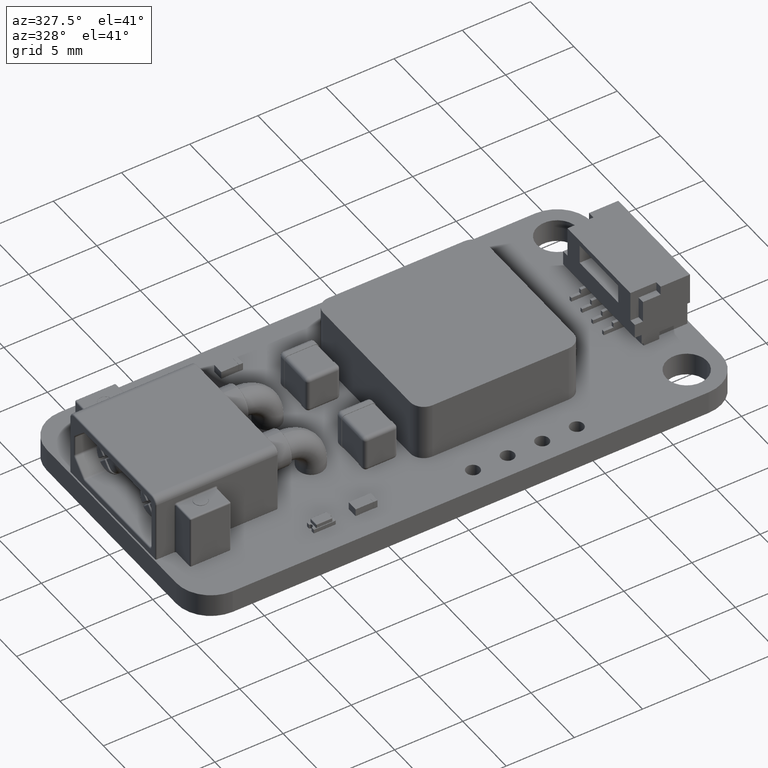
[diagram: clean part render]
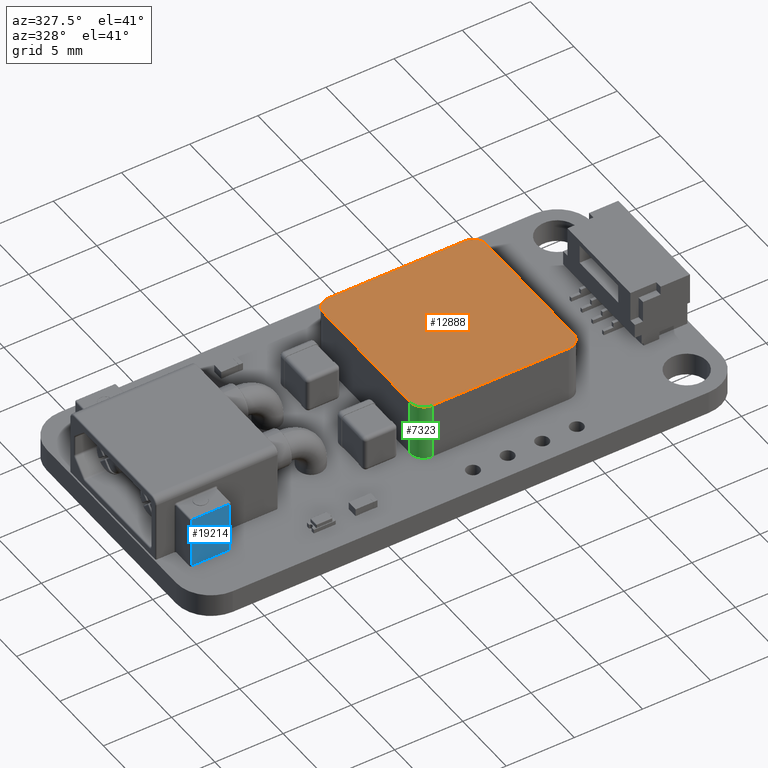
[diagram: same view with three faces highlighted in distinct colors, each labeled with its STEP entity id]
A machine part, auxiliary view with three faces highlighted in distinct colors.
Their STEP definitions:

[orange] entity #12888 — the highlighted planar face has unit normal (-0, 0, 1).
#1650 = EDGE_CURVE ( 'NONE', #7289, #15286, #23761, .T. ) ;
#3322 = CIRCLE ( 'NONE', #15708, 1.000000000000000888 ) ;
#3909 = DIRECTION ( 'NONE',  ( -0.000000000000000000, 0.000000000000000000, 1.000000000000000000 ) ) ;
#4015 = CARTESIAN_POINT ( 'NONE',  ( 55.17521793726596968, 30.47664569903596998, 4.200000000000000178 ) ) ;
#4392 = AXIS2_PLACEMENT_3D ( 'NONE', #9703, #3909, #15662 ) ;
#5145 = CARTESIAN_POINT ( 'NONE',  ( 56.17521793726596258, 41.47664569903596998, 4.200000000000000178 ) ) ;
#5521 = EDGE_CURVE ( 'NONE', #25078, #11271, #29219, .T. ) ;
#5750 = DIRECTION ( 'NONE',  ( -0.000000000000000000, 0.000000000000000000, 1.000000000000000000 ) ) ;
#5923 = CARTESIAN_POINT ( 'NONE',  ( 55.17521793726596258, 40.47664569903596998, 4.200000000000000178 ) ) ;
#6546 = DIRECTION ( 'NONE',  ( -0.000000000000000000, 0.000000000000000000, 1.000000000000000000 ) ) ;
#7289 = VERTEX_POINT ( 'NONE', #14321 ) ;
#7637 = CARTESIAN_POINT ( 'NONE',  ( 44.17521793726596968, 30.47664569903596998, 4.200000000000000178 ) ) ;
#8120 = ORIENTED_EDGE ( 'NONE', *, *, #30460, .T. ) ;
#8282 = CIRCLE ( 'NONE', #16291, 1.000000000000000888 ) ;
#8380 = CARTESIAN_POINT ( 'NONE',  ( 44.17521793726596968, 29.47664569903596998, 4.200000000000000178 ) ) ;
#8585 = AXIS2_PLACEMENT_3D ( 'NONE', #21249, #6546, #12139 ) ;
#9703 = CARTESIAN_POINT ( 'NONE',  ( 45.17521793726596968, 30.47664569903596643, 4.200000000000000178 ) ) ;
#9732 = CARTESIAN_POINT ( 'NONE',  ( 45.17521793726596258, 41.47664569903596998, 4.200000000000000178 ) ) ;
#10430 = CARTESIAN_POINT ( 'NONE',  ( 45.17521793726596968, 29.47664569903596998, 4.200000000000000178 ) ) ;
#10550 = EDGE_LOOP ( 'NONE', ( #25750, #15435, #31411, #19961, #13723, #8120, #11617, #27683 ) ) ;
#11271 = VERTEX_POINT ( 'NONE', #23059 ) ;
#11617 = ORIENTED_EDGE ( 'NONE', *, *, #32560, .T. ) ;
#12139 = DIRECTION ( 'NONE',  ( 1.000000000000000000, 0.000000000000000000, 0.000000000000000000 ) ) ;
#12351 = FACE_OUTER_BOUND ( 'NONE', #10550, .T. ) ;
#12888 = ADVANCED_FACE ( 'NONE', ( #12351 ), #29730, .T. ) ;
#13723 = ORIENTED_EDGE ( 'NONE', *, *, #5521, .T. ) ;
#13768 = CARTESIAN_POINT ( 'NONE',  ( 55.17521793726596258, 41.47664569903596998, 4.200000000000000178 ) ) ;
#14321 = CARTESIAN_POINT ( 'NONE',  ( 56.17521793726596258, 40.47664569903596998, 4.200000000000000178 ) ) ;
#14499 = DIRECTION ( 'NONE',  ( 1.000000000000000000, 0.000000000000000000, 0.000000000000000000 ) ) ;
#15286 = VERTEX_POINT ( 'NONE', #13768 ) ;
#15435 = ORIENTED_EDGE ( 'NONE', *, *, #31042, .T. ) ;
#15471 = DIRECTION ( 'NONE',  ( -1.000000000000000000, -0.000000000000000000, -0.000000000000000000 ) ) ;
#15482 = CIRCLE ( 'NONE', #4392, 1.000000000000000888 ) ;
#15640 = EDGE_CURVE ( 'NONE', #15286, #26690, #21108, .T. ) ;
#15662 = DIRECTION ( 'NONE',  ( 1.000000000000000000, 0.000000000000000000, 0.000000000000000000 ) ) ;
#15708 = AXIS2_PLACEMENT_3D ( 'NONE', #17199, #35369, #14499 ) ;
#16137 = CARTESIAN_POINT ( 'NONE',  ( 44.17521793726596968, 41.47664569903596998, 4.200000000000000178 ) ) ;
#16291 = AXIS2_PLACEMENT_3D ( 'NONE', #4015, #36879, #27606 ) ;
#16470 = VECTOR ( 'NONE', #20232, 1000.000000000000000 ) ;
#17199 = CARTESIAN_POINT ( 'NONE',  ( 45.17521793726596258, 40.47664569903596998, 4.200000000000000178 ) ) ;
#17284 = VECTOR ( 'NONE', #15471, 1000.000000000000000 ) ;
#17529 = VECTOR ( 'NONE', #33925, 1000.000000000000000 ) ;
#18362 = VERTEX_POINT ( 'NONE', #7637 ) ;
#18665 = CARTESIAN_POINT ( 'NONE',  ( 56.17521793726596258, 30.47664569903596998, 4.200000000000000178 ) ) ;
#19961 = ORIENTED_EDGE ( 'NONE', *, *, #35275, .T. ) ;
#19973 = CARTESIAN_POINT ( 'NONE',  ( 44.17521793726596968, 40.47664569903596998, 4.200000000000000178 ) ) ;
#20232 = DIRECTION ( 'NONE',  ( -1.445602896647339163E-16, 1.000000000000000000, -0.000000000000000000 ) ) ;
#20525 = EDGE_CURVE ( 'NONE', #28525, #18362, #30810, .T. ) ;
#21108 = LINE ( 'NONE', #24451, #17284 ) ;
#21249 = CARTESIAN_POINT ( 'NONE',  ( 50.17521793726596968, 35.47664569903596998, 4.200000000000000178 ) ) ;
#22763 = LINE ( 'NONE', #5145, #16470 ) ;
#23059 = CARTESIAN_POINT ( 'NONE',  ( 55.17521793726596968, 29.47664569903596998, 4.200000000000000178 ) ) ;
#23488 = DIRECTION ( 'NONE',  ( 1.000000000000000000, 0.000000000000000000, 0.000000000000000000 ) ) ;
#23761 = CIRCLE ( 'NONE', #37937, 1.000000000000000888 ) ;
#24451 = CARTESIAN_POINT ( 'NONE',  ( 44.17521793726596968, 41.47664569903596998, 4.200000000000000178 ) ) ;
#25078 = VERTEX_POINT ( 'NONE', #10430 ) ;
#25750 = ORIENTED_EDGE ( 'NONE', *, *, #15640, .T. ) ;
#26690 = VERTEX_POINT ( 'NONE', #9732 ) ;
#27356 = VERTEX_POINT ( 'NONE', #18665 ) ;
#27606 = DIRECTION ( 'NONE',  ( 1.000000000000000000, 0.000000000000000000, 0.000000000000000000 ) ) ;
#27683 = ORIENTED_EDGE ( 'NONE', *, *, #1650, .T. ) ;
#28525 = VERTEX_POINT ( 'NONE', #19973 ) ;
#29219 = LINE ( 'NONE', #8380, #37969 ) ;
#29730 = PLANE ( 'NONE',  #8585 ) ;
#30460 = EDGE_CURVE ( 'NONE', #11271, #27356, #8282, .T. ) ;
#30810 = LINE ( 'NONE', #16137, #17529 ) ;
#31042 = EDGE_CURVE ( 'NONE', #26690, #28525, #3322, .T. ) ;
#31411 = ORIENTED_EDGE ( 'NONE', *, *, #20525, .T. ) ;
#32560 = EDGE_CURVE ( 'NONE', #27356, #7289, #22763, .T. ) ;
#32590 = DIRECTION ( 'NONE',  ( 1.000000000000000000, 0.000000000000000000, 0.000000000000000000 ) ) ;
#33925 = DIRECTION ( 'NONE',  ( 2.168404344971008868E-16, -1.000000000000000000, 0.000000000000000000 ) ) ;
#35275 = EDGE_CURVE ( 'NONE', #18362, #25078, #15482, .T. ) ;
#35369 = DIRECTION ( 'NONE',  ( -0.000000000000000000, 0.000000000000000000, 1.000000000000000000 ) ) ;
#36879 = DIRECTION ( 'NONE',  ( -0.000000000000000000, 0.000000000000000000, 1.000000000000000000 ) ) ;
#37937 = AXIS2_PLACEMENT_3D ( 'NONE', #5923, #5750, #32590 ) ;
#37969 = VECTOR ( 'NONE', #23488, 1000.000000000000000 ) ;

[blue] entity #19214 — the highlighted planar face has unit normal (0, -1, 0).
#730 = VECTOR ( 'NONE', #20623, 1000.000000000000000 ) ;
#883 = LINE ( 'NONE', #4545, #15065 ) ;
#2241 = CARTESIAN_POINT ( 'NONE',  ( 27.00690271301597178, 28.69791513361972335, 0.09999999999999999167 ) ) ;
#2577 = VECTOR ( 'NONE', #20364, 1000.000000000000000 ) ;
#3344 = LINE ( 'NONE', #23858, #2577 ) ;
#4545 = CARTESIAN_POINT ( 'NONE',  ( 26.90690271301597392, 28.69791511613516732, 3.856451035752999967 ) ) ;
#5171 = CARTESIAN_POINT ( 'NONE',  ( 29.80690271301592986, 28.69791562318727074, 3.956451035752998280 ) ) ;
#8056 = VERTEX_POINT ( 'NONE', #2241 ) ;
#8111 = CARTESIAN_POINT ( 'NONE',  ( 29.95690271301592844, 28.69791564941410300, 0.09999999999999999167 ) ) ;
#11354 = VECTOR ( 'NONE', #20789, 1000.000000000000227 ) ;
#12636 = ORIENTED_EDGE ( 'NONE', *, *, #29027, .T. ) ;
#12686 = PLANE ( 'NONE',  #25362 ) ;
#12884 = CARTESIAN_POINT ( 'NONE',  ( 29.95690271301592844, 28.69791564941410300, 0.000000000000000000 ) ) ;
#15065 = VECTOR ( 'NONE', #18835, 1000.000000000000227 ) ;
#16170 = CARTESIAN_POINT ( 'NONE',  ( 29.80690271301592986, 28.69791562318727074, 0.09999999999999999167 ) ) ;
#18813 = ORIENTED_EDGE ( 'NONE', *, *, #30743, .T. ) ;
#18835 = DIRECTION ( 'NONE',  ( -0.9999999999999846789, -1.748455529999999430E-07, 0.000000000000000000 ) ) ;
#19214 = ADVANCED_FACE ( 'NONE', ( #27595 ), #12686, .T. ) ;
#19358 = VERTEX_POINT ( 'NONE', #16170 ) ;
#19454 = CARTESIAN_POINT ( 'NONE',  ( 27.00690271301597178, 28.69791513361972335, 3.856451035752999967 ) ) ;
#20274 = EDGE_CURVE ( 'NONE', #8056, #19358, #26413, .T. ) ;
#20364 = DIRECTION ( 'NONE',  ( 0.000000000000000000, 0.000000000000000000, -1.000000000000000000 ) ) ;
#20512 = EDGE_LOOP ( 'NONE', ( #31029, #12636, #18813, #20946 ) ) ;
#20623 = DIRECTION ( 'NONE',  ( 0.000000000000000000, 0.000000000000000000, 1.000000000000000000 ) ) ;
#20789 = DIRECTION ( 'NONE',  ( 0.9999999999999846789, 1.748455529999999430E-07, 0.000000000000000000 ) ) ;
#20946 = ORIENTED_EDGE ( 'NONE', *, *, #25414, .T. ) ;
#23571 = LINE ( 'NONE', #5171, #730 ) ;
#23858 = CARTESIAN_POINT ( 'NONE',  ( 27.00690271301597178, 28.69791513361972335, -6.783837756297999243E-16 ) ) ;
#24129 = VERTEX_POINT ( 'NONE', #19454 ) ;
#25362 = AXIS2_PLACEMENT_3D ( 'NONE', #12884, #36491, #31036 ) ;
#25414 = EDGE_CURVE ( 'NONE', #24129, #8056, #3344, .T. ) ;
#25631 = VERTEX_POINT ( 'NONE', #33611 ) ;
#26413 = LINE ( 'NONE', #8111, #11354 ) ;
#27595 = FACE_OUTER_BOUND ( 'NONE', #20512, .T. ) ;
#29027 = EDGE_CURVE ( 'NONE', #19358, #25631, #23571, .T. ) ;
#30743 = EDGE_CURVE ( 'NONE', #25631, #24129, #883, .T. ) ;
#31029 = ORIENTED_EDGE ( 'NONE', *, *, #20274, .T. ) ;
#31036 = DIRECTION ( 'NONE',  ( 0.000000000000000000, 0.000000000000000000, -1.000000000000000000 ) ) ;
#33611 = CARTESIAN_POINT ( 'NONE',  ( 29.80690271301592986, 28.69791562318727074, 3.856451035752999967 ) ) ;
#36491 = DIRECTION ( 'NONE',  ( 1.748455529999999694E-07, -0.9999999999999847899, 0.000000000000000000 ) ) ;

[green] entity #7323 — the highlighted cylindrical surface (edge-blend (fillet) strip) has radius 1 mm, axis along (-0, 0, -1).
#426 = EDGE_CURVE ( 'NONE', #25078, #784, #20565, .T. ) ;
#784 = VERTEX_POINT ( 'NONE', #9645 ) ;
#1184 = CARTESIAN_POINT ( 'NONE',  ( 45.17521793726596968, 30.47664569903596643, 4.200000000000000178 ) ) ;
#2007 = VERTEX_POINT ( 'NONE', #18022 ) ;
#3855 = ORIENTED_EDGE ( 'NONE', *, *, #35275, .F. ) ;
#3909 = DIRECTION ( 'NONE',  ( -0.000000000000000000, 0.000000000000000000, 1.000000000000000000 ) ) ;
#4392 = AXIS2_PLACEMENT_3D ( 'NONE', #9703, #3909, #15662 ) ;
#5093 = ORIENTED_EDGE ( 'NONE', *, *, #13071, .F. ) ;
#5434 = EDGE_LOOP ( 'NONE', ( #3855, #32972, #5093, #31165 ) ) ;
#7323 = ADVANCED_FACE ( 'NONE', ( #31878 ), #23640, .T. ) ;
#7637 = CARTESIAN_POINT ( 'NONE',  ( 44.17521793726596968, 30.47664569903596998, 4.200000000000000178 ) ) ;
#8464 = VECTOR ( 'NONE', #26121, 1000.000000000000000 ) ;
#9645 = CARTESIAN_POINT ( 'NONE',  ( 45.17521793726596968, 29.47664569903596998, 0.000000000000000000 ) ) ;
#9703 = CARTESIAN_POINT ( 'NONE',  ( 45.17521793726596968, 30.47664569903596643, 4.200000000000000178 ) ) ;
#10430 = CARTESIAN_POINT ( 'NONE',  ( 45.17521793726596968, 29.47664569903596998, 4.200000000000000178 ) ) ;
#12041 = EDGE_CURVE ( 'NONE', #2007, #18362, #14280, .T. ) ;
#12293 = AXIS2_PLACEMENT_3D ( 'NONE', #13482, #22409, #16380 ) ;
#13071 = EDGE_CURVE ( 'NONE', #784, #2007, #36381, .T. ) ;
#13482 = CARTESIAN_POINT ( 'NONE',  ( 45.17521793726596968, 30.47664569903596643, 0.000000000000000000 ) ) ;
#14280 = LINE ( 'NONE', #31833, #8464 ) ;
#15482 = CIRCLE ( 'NONE', #4392, 1.000000000000000888 ) ;
#15662 = DIRECTION ( 'NONE',  ( 1.000000000000000000, 0.000000000000000000, 0.000000000000000000 ) ) ;
#16380 = DIRECTION ( 'NONE',  ( 1.000000000000000000, 0.000000000000000000, 0.000000000000000000 ) ) ;
#18022 = CARTESIAN_POINT ( 'NONE',  ( 44.17521793726596968, 30.47664569903596998, 0.000000000000000000 ) ) ;
#18358 = DIRECTION ( 'NONE',  ( -1.000000000000000000, 0.000000000000000000, 0.000000000000000000 ) ) ;
#18362 = VERTEX_POINT ( 'NONE', #7637 ) ;
#20565 = LINE ( 'NONE', #32326, #20620 ) ;
#20620 = VECTOR ( 'NONE', #29422, 1000.000000000000000 ) ;
#21097 = DIRECTION ( 'NONE',  ( -0.000000000000000000, 0.000000000000000000, -1.000000000000000000 ) ) ;
#22409 = DIRECTION ( 'NONE',  ( 0.000000000000000000, -0.000000000000000000, -1.000000000000000000 ) ) ;
#23640 = CYLINDRICAL_SURFACE ( 'NONE', #33788, 1.000000000000000888 ) ;
#25078 = VERTEX_POINT ( 'NONE', #10430 ) ;
#26121 = DIRECTION ( 'NONE',  ( 0.000000000000000000, -0.000000000000000000, 1.000000000000000000 ) ) ;
#29422 = DIRECTION ( 'NONE',  ( -0.000000000000000000, 0.000000000000000000, -1.000000000000000000 ) ) ;
#31165 = ORIENTED_EDGE ( 'NONE', *, *, #426, .F. ) ;
#31833 = CARTESIAN_POINT ( 'NONE',  ( 44.17521793726596968, 30.47664569903596998, 4.200000000000000178 ) ) ;
#31878 = FACE_OUTER_BOUND ( 'NONE', #5434, .T. ) ;
#32326 = CARTESIAN_POINT ( 'NONE',  ( 45.17521793726596968, 29.47664569903596998, 4.200000000000000178 ) ) ;
#32972 = ORIENTED_EDGE ( 'NONE', *, *, #12041, .F. ) ;
#33788 = AXIS2_PLACEMENT_3D ( 'NONE', #1184, #21097, #18358 ) ;
#35275 = EDGE_CURVE ( 'NONE', #18362, #25078, #15482, .T. ) ;
#36381 = CIRCLE ( 'NONE', #12293, 1.000000000000000888 ) ;